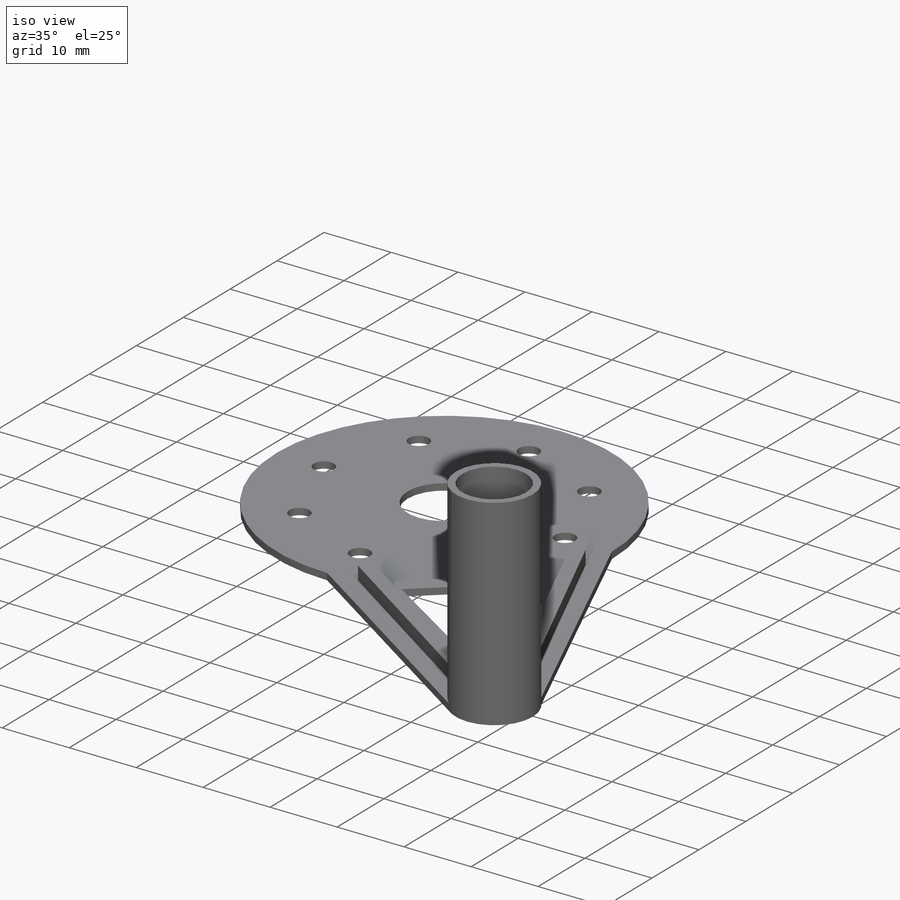
[diagram: iso view]
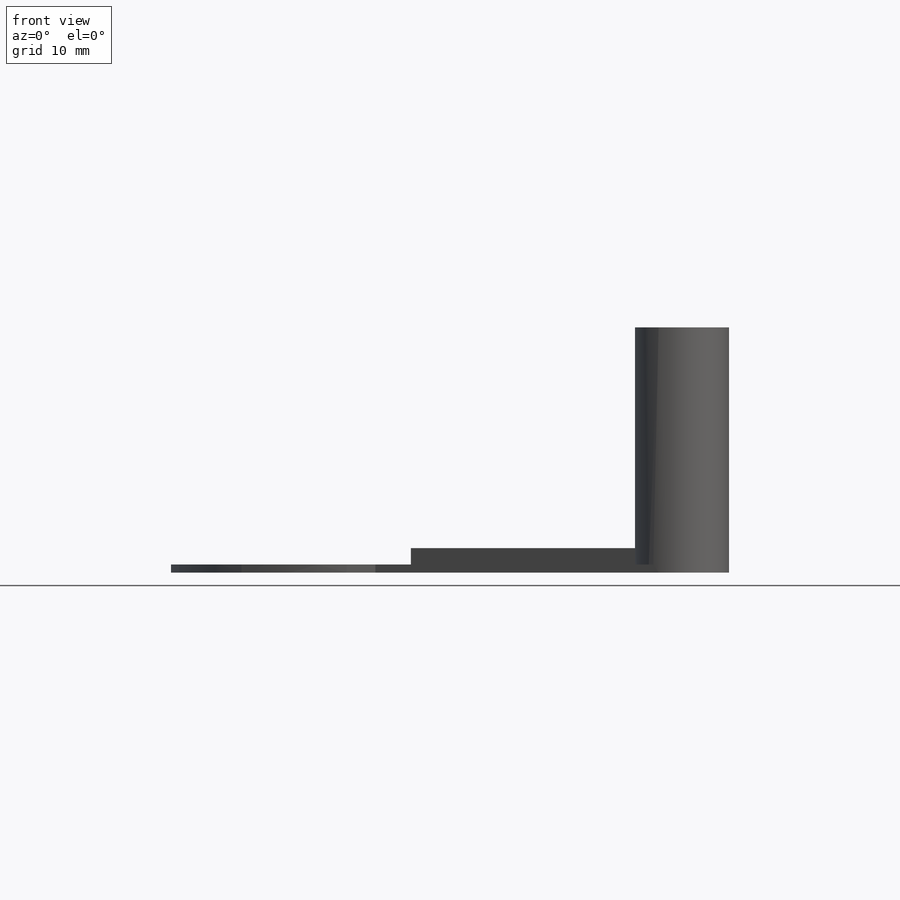
[diagram: front view]
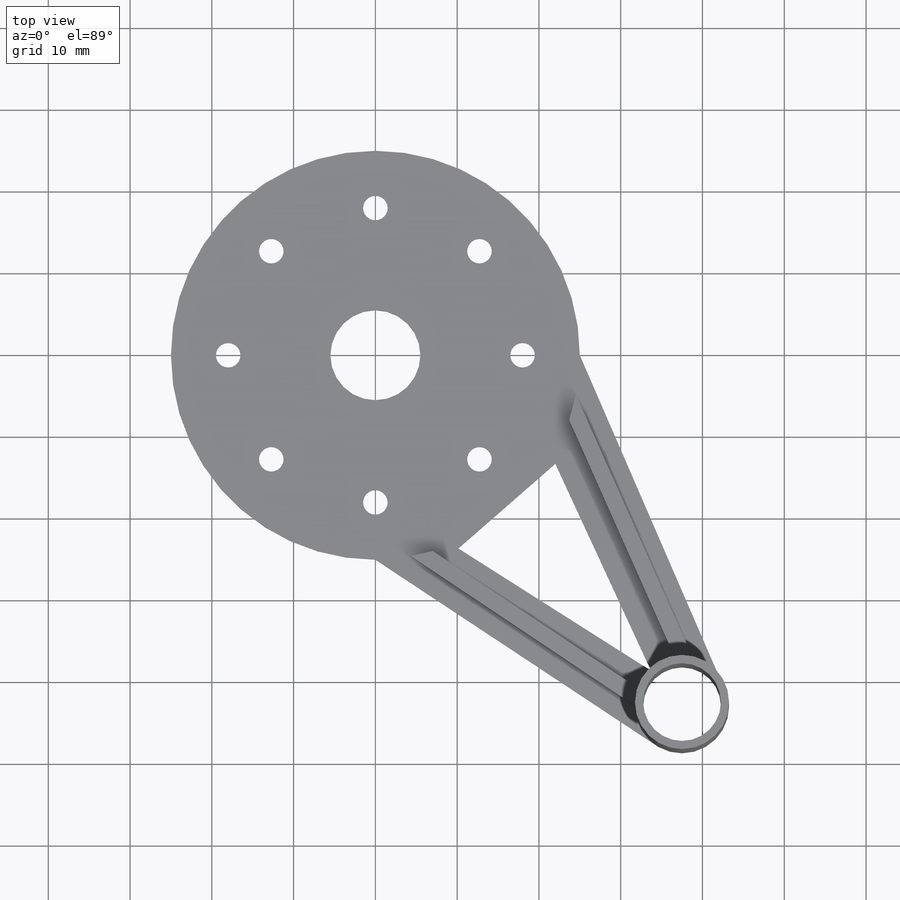
[diagram: top view]
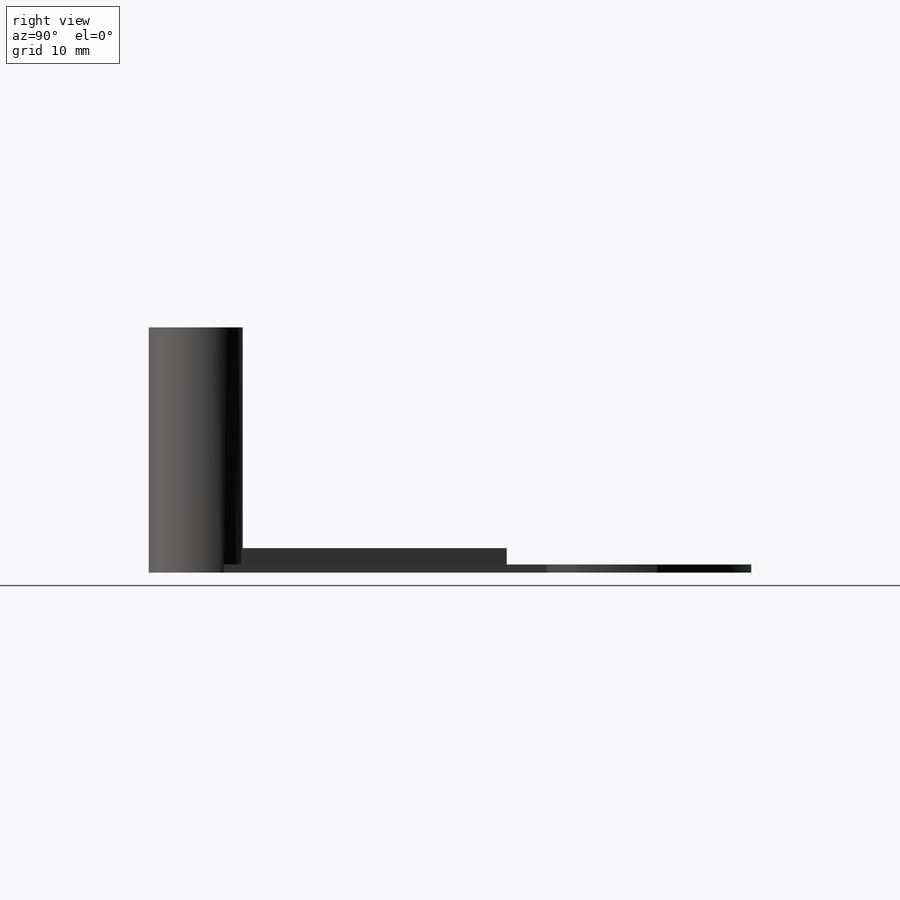
[diagram: right view]
SOLIDWORKS PART (.sldprt)
format: sldprt  version: not decoded by parser v0  size: 244,224 bytes
history: native  units: mm
features: sketch x6, extrude x4, plane x3, cut_extrude x2, material x1 (+9 scaffold rows collapsed)
feature tree (25):
  scaffold x9  (default folders/planes/origin — collapsed)
  material  "材质 <未指定>"
  plane  "前视基准面"
  plane  "上视基准面"
  plane  "右视基准面"
  sketch  "草图1"  dims[D3=11.5mm D4=50.0mm D6=3.0mm D1=37.5mm D2=57.0mm D5=18.0mm D7=8.0]
  extrude  "凸台-拉伸1"  Depth=1mm
  sketch  "草图2"
  extrude  "凸台-拉伸2"  Depth=1mm
  sketch  "草图3"  dims[D1=11.5mm]
  extrude  "凸台-拉伸3"  Depth=30mm
  sketch  "草图4"
  cut_extrude  "切除-拉伸1"  Depth=30mm
  sketch  "草图5"  dims[D1=2.0mm D2=2.0mm]
  extrude  "凸台-拉伸4"  Depth=2mm
  sketch  "草图6"  dims[D1=9.5mm]
  cut_extrude  "切除-拉伸3"  Depth=30mm
decode coverage: 10 of 12 modeling features carry decoded parameters
note: suppression state not decoded; provenance and decode notes live in map.json
